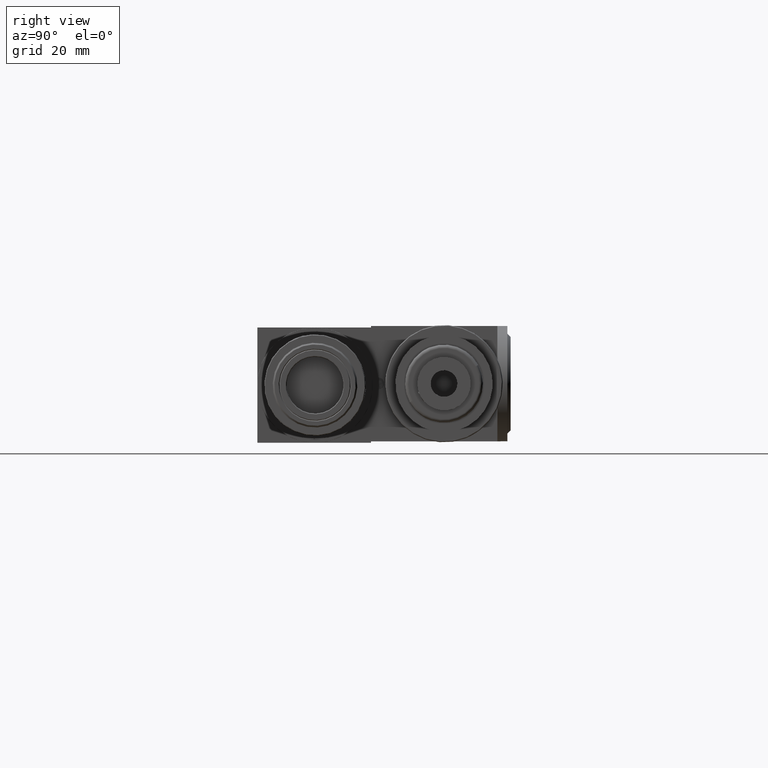
[diagram: clean part render]
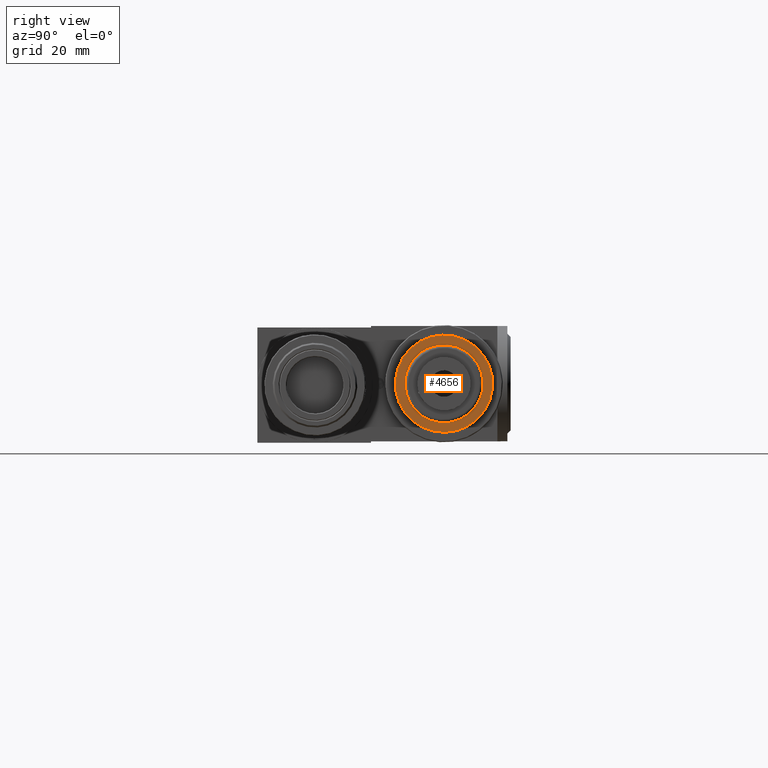
[diagram: same view with one face highlighted and labeled with its STEP entity id]
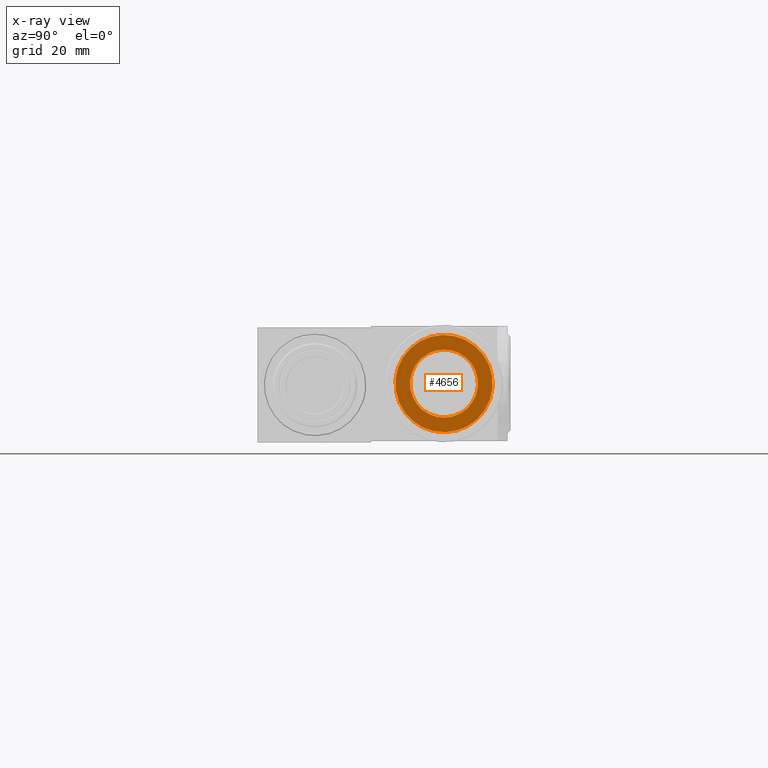
[diagram: x-ray of the same camera — body ghosted, the highlighted face saturated]
A machine part, right view. The second image highlights one B-rep face of the part: STEP entity #4656.
The next image is the same camera in x-ray: the body ghosted, the highlighted face saturated — about 0% of this face is hidden behind the body in this view.
In plain terms, the highlighted planar face has unit normal (1, 0, -0).
Its self-contained STEP definition (entity closure, byte-faithful):
#1115 = EDGE_LOOP ( 'NONE', ( #10312, #12622 ) ) ;
#1479 = EDGE_CURVE ( 'NONE', #7011, #8376, #2514, .T. ) ;
#2394 = CIRCLE ( 'NONE', #12698, 10.18517459814379933 ) ;
#2514 = CIRCLE ( 'NONE', #4032, 14.60000000001750031 ) ;
#2783 = CARTESIAN_POINT ( 'NONE',  ( 38.92183224897279814, 0.000000000000000000, 0.000000000000000000 ) ) ;
#3275 = CARTESIAN_POINT ( 'NONE',  ( 38.92183224897279814, 0.004213562322163970537, 0.000000000000000000 ) ) ;
#3290 = CARTESIAN_POINT ( 'NONE',  ( 38.92183224897279814, 0.000000000000000000, 0.000000000000000000 ) ) ;
#3747 = CIRCLE ( 'NONE', #7520, 10.18517459814379933 ) ;
#4032 = AXIS2_PLACEMENT_3D ( 'NONE', #3275, #4145, #4229 ) ;
#4145 = DIRECTION ( 'NONE',  ( -1.000000000000000000, 0.000000000000000000, 0.000000000000000000 ) ) ;
#4197 = DIRECTION ( 'NONE',  ( 0.000000000000000000, 0.000000000000000000, -1.000000000000000000 ) ) ;
#4229 = DIRECTION ( 'NONE',  ( 0.000000000000000000, 0.000000000000000000, -1.000000000000000000 ) ) ;
#4552 = AXIS2_PLACEMENT_3D ( 'NONE', #3290, #10521, #11852 ) ;
#4656 = ADVANCED_FACE ( 'NONE', ( #15177, #14068 ), #5727, .T. ) ;
#4905 = VERTEX_POINT ( 'NONE', #6636 ) ;
#4945 = DIRECTION ( 'NONE',  ( -1.000000000000000000, 0.000000000000000000, 0.000000000000000000 ) ) ;
#5662 = CIRCLE ( 'NONE', #13698, 14.60000000001750031 ) ;
#5727 = PLANE ( 'NONE',  #4552 ) ;
#6401 = CARTESIAN_POINT ( 'NONE',  ( 38.92183224897279814, 0.004213562322165758170, 14.60000000001750031 ) ) ;
#6636 = CARTESIAN_POINT ( 'NONE',  ( 38.92183224897279814, 1.247324147037373277E-15, 10.18517459814379933 ) ) ;
#7011 = VERTEX_POINT ( 'NONE', #6401 ) ;
#7261 = ORIENTED_EDGE ( 'NONE', *, *, #12362, .T. ) ;
#7520 = AXIS2_PLACEMENT_3D ( 'NONE', #8568, #4945, #11069 ) ;
#7584 = DIRECTION ( 'NONE',  ( -1.000000000000000000, 0.000000000000000000, 0.000000000000000000 ) ) ;
#8113 = DIRECTION ( 'NONE',  ( 0.000000000000000000, 0.000000000000000000, -1.000000000000000000 ) ) ;
#8376 = VERTEX_POINT ( 'NONE', #14200 ) ;
#8568 = CARTESIAN_POINT ( 'NONE',  ( 38.92183224897279814, 0.000000000000000000, 0.000000000000000000 ) ) ;
#9136 = DIRECTION ( 'NONE',  ( -1.000000000000000000, 0.000000000000000000, 0.000000000000000000 ) ) ;
#9710 = ORIENTED_EDGE ( 'NONE', *, *, #13493, .T. ) ;
#10312 = ORIENTED_EDGE ( 'NONE', *, *, #10352, .F. ) ;
#10352 = EDGE_CURVE ( 'NONE', #8376, #7011, #5662, .T. ) ;
#10521 = DIRECTION ( 'NONE',  ( 1.000000000000000000, 0.000000000000000000, 0.000000000000000000 ) ) ;
#10535 = CARTESIAN_POINT ( 'NONE',  ( 38.92183224897279814, 0.004213562322163970537, 0.000000000000000000 ) ) ;
#11069 = DIRECTION ( 'NONE',  ( 0.000000000000000000, 0.000000000000000000, -1.000000000000000000 ) ) ;
#11852 = DIRECTION ( 'NONE',  ( 0.000000000000000000, 1.000000000000000000, 0.000000000000000000 ) ) ;
#12096 = EDGE_LOOP ( 'NONE', ( #7261, #9710 ) ) ;
#12362 = EDGE_CURVE ( 'NONE', #13903, #4905, #3747, .T. ) ;
#12622 = ORIENTED_EDGE ( 'NONE', *, *, #1479, .F. ) ;
#12698 = AXIS2_PLACEMENT_3D ( 'NONE', #2783, #7584, #4197 ) ;
#13493 = EDGE_CURVE ( 'NONE', #4905, #13903, #2394, .T. ) ;
#13698 = AXIS2_PLACEMENT_3D ( 'NONE', #10535, #9136, #8113 ) ;
#13903 = VERTEX_POINT ( 'NONE', #14878 ) ;
#14068 = FACE_OUTER_BOUND ( 'NONE', #1115, .T. ) ;
#14200 = CARTESIAN_POINT ( 'NONE',  ( 38.92183224897279814, 0.004213562322163970537, -14.60000000001750031 ) ) ;
#14878 = CARTESIAN_POINT ( 'NONE',  ( 38.92183224897279814, 0.000000000000000000, -10.18517459814379933 ) ) ;
#15177 = FACE_BOUND ( 'NONE', #12096, .T. ) ;